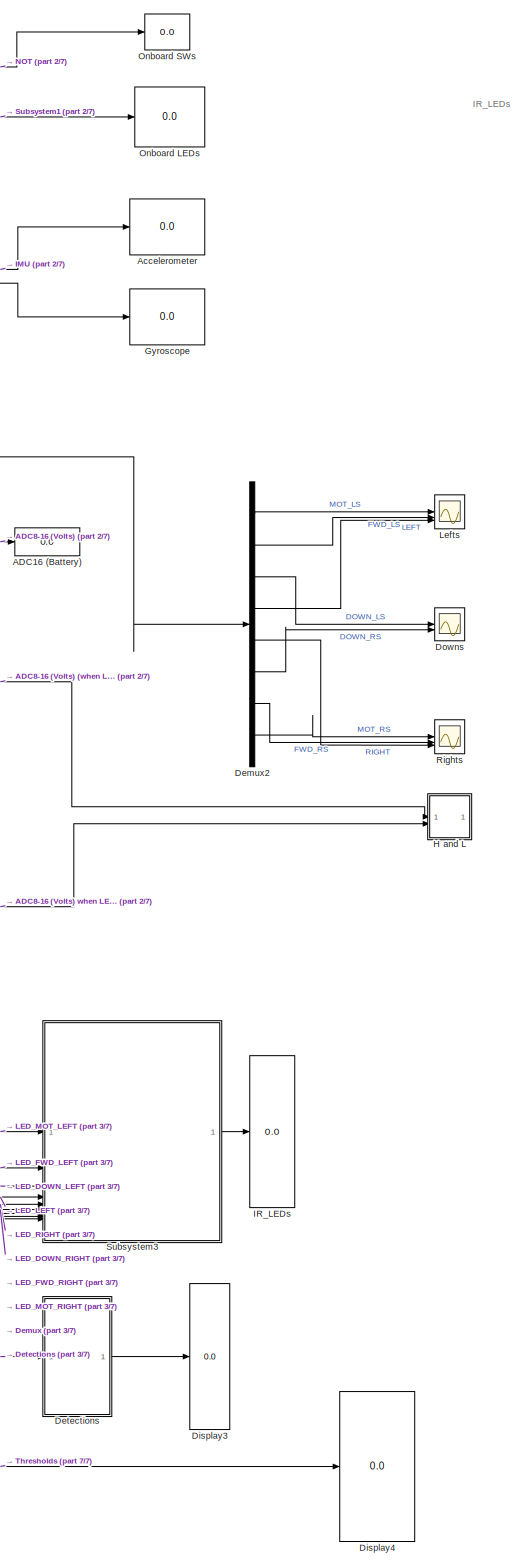
[diagram: root canvas - part 1/7, center side, full height]
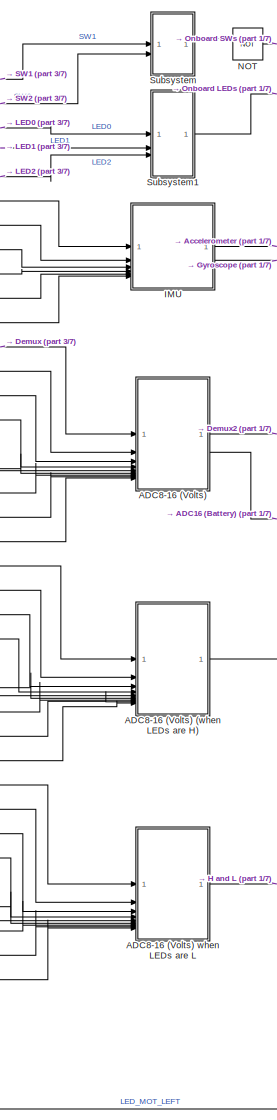
[diagram: root canvas - part 2/7, central region]
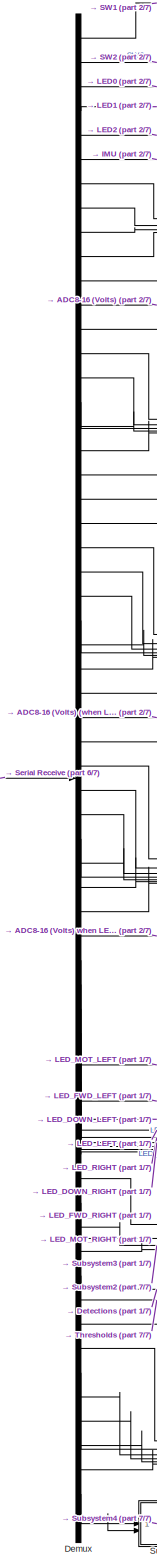
[diagram: root canvas - part 3/7, left side, full height]
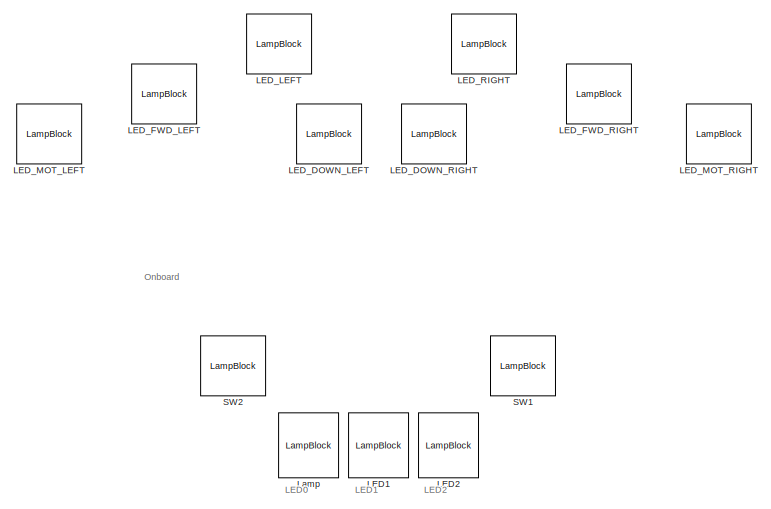
[diagram: root canvas - part 4/7, top right region]
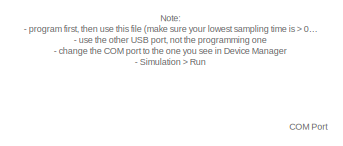
[diagram: root canvas - part 5/7, middle left region]
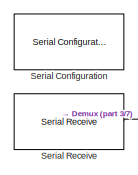
[diagram: root canvas - part 6/7, middle left region]
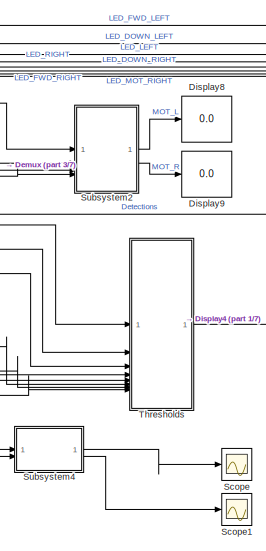
[diagram: root canvas - part 7/7, bottom center region]
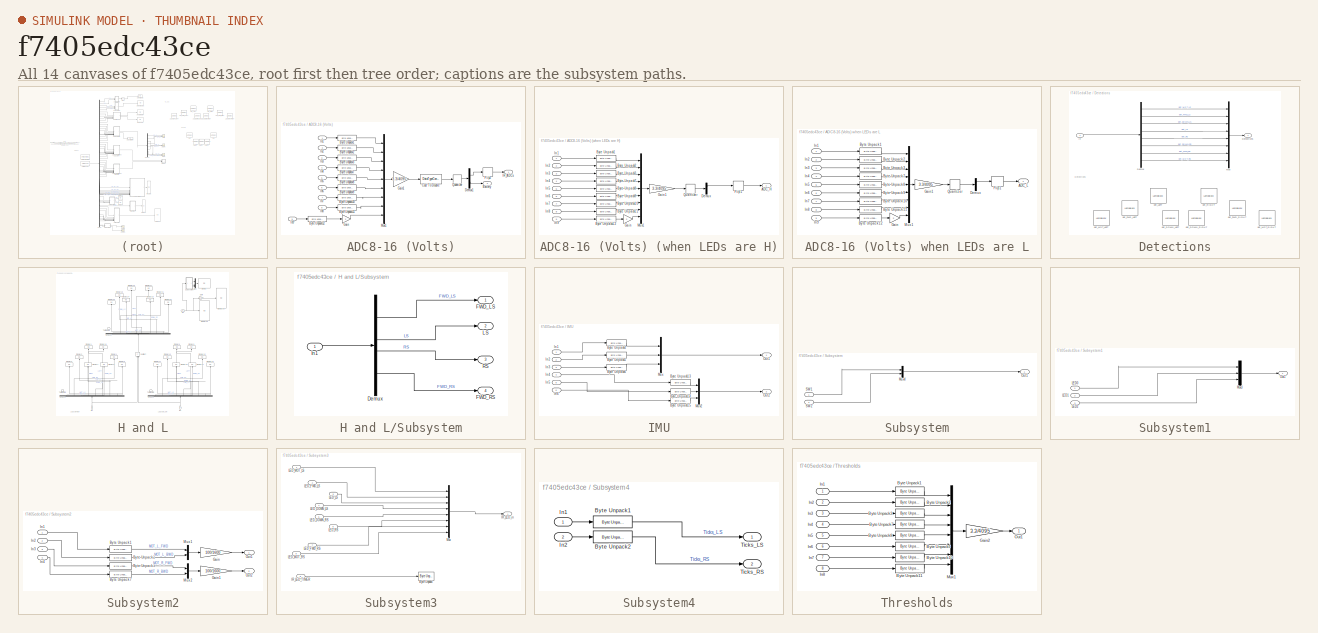
[diagram: thumbnail index - all 14 canvases of the model, root first then tree order]
MODEL slx_f7405edc43ce
KIND model
CONFIG AbsTol = auto
CONFIG EnableMultiTasking = off
CONFIG FixedStep = 0.001
CONFIG MaxStep = auto
CONFIG MinStep = auto
CONFIG RelTol = 1e-3
CONFIG SampleTimeConstraint = Unconstrained
CONFIG SolverName = VariableStepAuto
CONFIG StartTime = 0.0
CONFIG StopTime = inf
WORKSPACE source: mxarray member
WORKSPACE comPort: string (value not decoded)
WORKSPACE numBytes: Simulink.Parameter (value not decoded)
BLOCK [Display] ADC16 (Battery)
  Decimation = 1
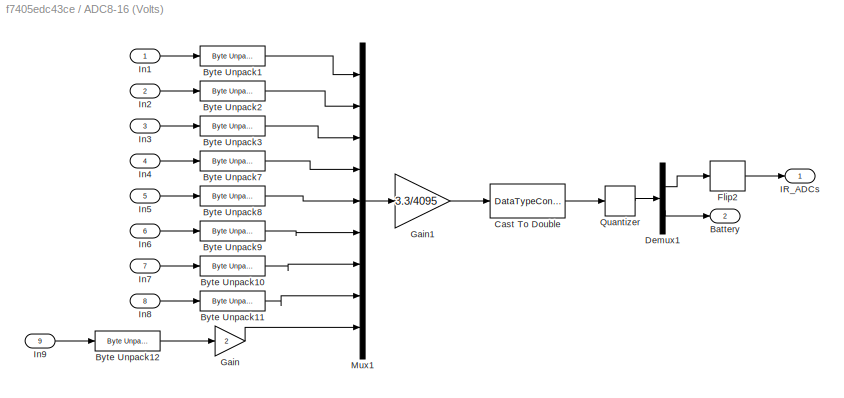
BLOCK [SubSystem] ADC8-16 (Volts)
BLOCK [SubSystem] ADC8-16 (Volts) (when LEDs are H)
BLOCK [Outport] ADC8-16 (Volts) (when LEDs are H)/ADC_H
  OutDataTypeStr = single
  PortDimensions = 8
  SignalType = real
  VarSizeSig = No
BLOCK [Reference] ADC8-16 (Volts) (when LEDs are H)/Byte Unpack1  REF=etargetslib/Byte Unpack
  SourceBlock = etargetslib/Byte Unpack
  SourceType = Byte Unpack
BLOCK [Reference] ADC8-16 (Volts) (when LEDs are H)/Byte Unpack10  REF=etargetslib/Byte Unpack
  SourceBlock = etargetslib/Byte Unpack
  SourceType = Byte Unpack
BLOCK [Reference] ADC8-16 (Volts) (when LEDs are H)/Byte Unpack11  REF=etargetslib/Byte Unpack
  SourceBlock = etargetslib/Byte Unpack
  SourceType = Byte Unpack
BLOCK [Reference] ADC8-16 (Volts) (when LEDs are H)/Byte Unpack12  REF=etargetslib/Byte Unpack
  SourceBlock = etargetslib/Byte Unpack
  SourceType = Byte Unpack
BLOCK [Reference] ADC8-16 (Volts) (when LEDs are H)/Byte Unpack2  REF=etargetslib/Byte Unpack
  SourceBlock = etargetslib/Byte Unpack
  SourceType = Byte Unpack
BLOCK [Reference] ADC8-16 (Volts) (when LEDs are H)/Byte Unpack3  REF=etargetslib/Byte Unpack
  SourceBlock = etargetslib/Byte Unpack
  SourceType = Byte Unpack
BLOCK [Reference] ADC8-16 (Volts) (when LEDs are H)/Byte Unpack7  REF=etargetslib/Byte Unpack
  SourceBlock = etargetslib/Byte Unpack
  SourceType = Byte Unpack
BLOCK [Reference] ADC8-16 (Volts) (when LEDs are H)/Byte Unpack8  REF=etargetslib/Byte Unpack
  SourceBlock = etargetslib/Byte Unpack
  SourceType = Byte Unpack
BLOCK [Reference] ADC8-16 (Volts) (when LEDs are H)/Byte Unpack9  REF=etargetslib/Byte Unpack
  SourceBlock = etargetslib/Byte Unpack
  SourceType = Byte Unpack
BLOCK [Demux] ADC8-16 (Volts) (when LEDs are H)/Demux
  Outputs = [8 1]
BLOCK [DSPFlip] ADC8-16 (Volts) (when LEDs are H)/Flip1
BLOCK [Gain] ADC8-16 (Volts) (when LEDs are H)/Gain
  Gain = 2
  OutDataTypeStr = uint16
BLOCK [Gain] ADC8-16 (Volts) (when LEDs are H)/Gain1
  Gain = 3.3/4095
  OutDataTypeStr = single
BLOCK [Inport] ADC8-16 (Volts) (when LEDs are H)/In1
BLOCK [Inport] ADC8-16 (Volts) (when LEDs are H)/In2
  Port = 2
BLOCK [Inport] ADC8-16 (Volts) (when LEDs are H)/In3
  Port = 3
BLOCK [Inport] ADC8-16 (Volts) (when LEDs are H)/In4
  Port = 4
BLOCK [Inport] ADC8-16 (Volts) (when LEDs are H)/In5
  Port = 5
BLOCK [Inport] ADC8-16 (Volts) (when LEDs are H)/In6
  Port = 6
BLOCK [Inport] ADC8-16 (Volts) (when LEDs are H)/In7
  Port = 7
BLOCK [Inport] ADC8-16 (Volts) (when LEDs are H)/In8
  Port = 8
BLOCK [Inport] ADC8-16 (Volts) (when LEDs are H)/In9
  Port = 9
BLOCK [Mux] ADC8-16 (Volts) (when LEDs are H)/Mux1
  DisplayOption = bar
  Inputs = 9
BLOCK [Quantizer] ADC8-16 (Volts) (when LEDs are H)/Quantizer
  QuantizationInterval = 0.01
BLOCK [SubSystem] ADC8-16 (Volts) when LEDs are L
BLOCK [Outport] ADC8-16 (Volts) when LEDs are L/ADC_L
  OutDataTypeStr = single
  PortDimensions = 8
  SignalType = real
  VarSizeSig = No
BLOCK [Reference] ADC8-16 (Volts) when LEDs are L/Byte Unpack1  REF=etargetslib/Byte Unpack
  SourceBlock = etargetslib/Byte Unpack
  SourceType = Byte Unpack
BLOCK [Reference] ADC8-16 (Volts) when LEDs are L/Byte Unpack10  REF=etargetslib/Byte Unpack
  SourceBlock = etargetslib/Byte Unpack
  SourceType = Byte Unpack
BLOCK [Reference] ADC8-16 (Volts) when LEDs are L/Byte Unpack11  REF=etargetslib/Byte Unpack
  SourceBlock = etargetslib/Byte Unpack
  SourceType = Byte Unpack
BLOCK [Reference] ADC8-16 (Volts) when LEDs are L/Byte Unpack12  REF=etargetslib/Byte Unpack
  SourceBlock = etargetslib/Byte Unpack
  SourceType = Byte Unpack
BLOCK [Reference] ADC8-16 (Volts) when LEDs are L/Byte Unpack2  REF=etargetslib/Byte Unpack
  SourceBlock = etargetslib/Byte Unpack
  SourceType = Byte Unpack
BLOCK [Reference] ADC8-16 (Volts) when LEDs are L/Byte Unpack3  REF=etargetslib/Byte Unpack
  SourceBlock = etargetslib/Byte Unpack
  SourceType = Byte Unpack
BLOCK [Reference] ADC8-16 (Volts) when LEDs are L/Byte Unpack7  REF=etargetslib/Byte Unpack
  SourceBlock = etargetslib/Byte Unpack
  SourceType = Byte Unpack
BLOCK [Reference] ADC8-16 (Volts) when LEDs are L/Byte Unpack8  REF=etargetslib/Byte Unpack
  SourceBlock = etargetslib/Byte Unpack
  SourceType = Byte Unpack
BLOCK [Reference] ADC8-16 (Volts) when LEDs are L/Byte Unpack9  REF=etargetslib/Byte Unpack
  SourceBlock = etargetslib/Byte Unpack
  SourceType = Byte Unpack
BLOCK [Demux] ADC8-16 (Volts) when LEDs are L/Demux
  Outputs = [8 1]
BLOCK [DSPFlip] ADC8-16 (Volts) when LEDs are L/Flip1
BLOCK [Gain] ADC8-16 (Volts) when LEDs are L/Gain
  Gain = 2
  OutDataTypeStr = uint16
BLOCK [Gain] ADC8-16 (Volts) when LEDs are L/Gain1
  Gain = 3.3/4095
  OutDataTypeStr = single
BLOCK [Inport] ADC8-16 (Volts) when LEDs are L/In1
BLOCK [Inport] ADC8-16 (Volts) when LEDs are L/In2
  Port = 2
BLOCK [Inport] ADC8-16 (Volts) when LEDs are L/In3
  Port = 3
BLOCK [Inport] ADC8-16 (Volts) when LEDs are L/In4
  Port = 4
BLOCK [Inport] ADC8-16 (Volts) when LEDs are L/In5
  Port = 5
BLOCK [Inport] ADC8-16 (Volts) when LEDs are L/In6
  Port = 6
BLOCK [Inport] ADC8-16 (Volts) when LEDs are L/In7
  Port = 7
BLOCK [Inport] ADC8-16 (Volts) when LEDs are L/In8
  Port = 8
BLOCK [Inport] ADC8-16 (Volts) when LEDs are L/In9
  Port = 9
BLOCK [Mux] ADC8-16 (Volts) when LEDs are L/Mux1
  DisplayOption = bar
  Inputs = 9
BLOCK [Quantizer] ADC8-16 (Volts) when LEDs are L/Quantizer
  QuantizationInterval = 0.01
BLOCK [Outport] ADC8-16 (Volts)/Battery
  Port = 2
BLOCK [Reference] ADC8-16 (Volts)/Byte Unpack1  REF=etargetslib/Byte Unpack
  SourceBlock = etargetslib/Byte Unpack
  SourceType = Byte Unpack
BLOCK [Reference] ADC8-16 (Volts)/Byte Unpack10  REF=etargetslib/Byte Unpack
  SourceBlock = etargetslib/Byte Unpack
  SourceType = Byte Unpack
BLOCK [Reference] ADC8-16 (Volts)/Byte Unpack11  REF=etargetslib/Byte Unpack
  SourceBlock = etargetslib/Byte Unpack
  SourceType = Byte Unpack
BLOCK [Reference] ADC8-16 (Volts)/Byte Unpack12  REF=etargetslib/Byte Unpack
  SourceBlock = etargetslib/Byte Unpack
  SourceType = Byte Unpack
BLOCK [Reference] ADC8-16 (Volts)/Byte Unpack2  REF=etargetslib/Byte Unpack
  SourceBlock = etargetslib/Byte Unpack
  SourceType = Byte Unpack
BLOCK [Reference] ADC8-16 (Volts)/Byte Unpack3  REF=etargetslib/Byte Unpack
  SourceBlock = etargetslib/Byte Unpack
  SourceType = Byte Unpack
BLOCK [Reference] ADC8-16 (Volts)/Byte Unpack7  REF=etargetslib/Byte Unpack
  SourceBlock = etargetslib/Byte Unpack
  SourceType = Byte Unpack
BLOCK [Reference] ADC8-16 (Volts)/Byte Unpack8  REF=etargetslib/Byte Unpack
  SourceBlock = etargetslib/Byte Unpack
  SourceType = Byte Unpack
BLOCK [Reference] ADC8-16 (Volts)/Byte Unpack9  REF=etargetslib/Byte Unpack
  SourceBlock = etargetslib/Byte Unpack
  SourceType = Byte Unpack
BLOCK [DataTypeConversion] ADC8-16 (Volts)/Cast To Double
  OutDataTypeStr = double
  RndMeth = Floor
  SaturateOnIntegerOverflow = off
BLOCK [Demux] ADC8-16 (Volts)/Demux1
  Outputs = [8 1]
BLOCK [DSPFlip] ADC8-16 (Volts)/Flip2
BLOCK [Gain] ADC8-16 (Volts)/Gain
  Gain = 2
  OutDataTypeStr = uint16
BLOCK [Gain] ADC8-16 (Volts)/Gain1
  Gain = 3.3/4095
BLOCK [Outport] ADC8-16 (Volts)/IR_ADCs
BLOCK [Inport] ADC8-16 (Volts)/In1
BLOCK [Inport] ADC8-16 (Volts)/In2
  Port = 2
BLOCK [Inport] ADC8-16 (Volts)/In3
  Port = 3
BLOCK [Inport] ADC8-16 (Volts)/In4
  Port = 4
BLOCK [Inport] ADC8-16 (Volts)/In5
  Port = 5
BLOCK [Inport] ADC8-16 (Volts)/In6
  Port = 6
BLOCK [Inport] ADC8-16 (Volts)/In7
  Port = 7
BLOCK [Inport] ADC8-16 (Volts)/In8
  Port = 8
BLOCK [Inport] ADC8-16 (Volts)/In9
  Port = 9
BLOCK [Mux] ADC8-16 (Volts)/Mux1
  DisplayOption = bar
  Inputs = 9
BLOCK [Quantizer] ADC8-16 (Volts)/Quantizer
  QuantizationInterval = 0.01
BLOCK [Display] Accelerometer
  Decimation = 1
BLOCK [Demux] Demux
  Outputs = [1 1 1 1 1 4 4 4 4 4 4 2 2 2 2 2 2 2 2 2 2 2 2 2 2 2 2 2 2 2 2 2 2 2 2 2 2 2 1 1 1 1 1 1 1 1 4 2 2 2 2 8 2 2 2 2 2 2 2 2 4 4]
BLOCK [Demux] Demux2
  Outputs = 8
BLOCK [SubSystem] Detections
BLOCK [Demux] Detections/Demux
  Outputs = 8
BLOCK [Outport] Detections/Detections
BLOCK [Inport] Detections/In
BLOCK [Mux] Detections/Mux
  DisplayOption = bar
  Inputs = 8
BLOCK [LampBlock] Detections/det_DOWN_LEFT
  LabelPosition = Hide
BLOCK [LampBlock] Detections/det_DOWN_RIGHT
  LabelPosition = Hide
BLOCK [LampBlock] Detections/det_FWD_LEFT
  LabelPosition = Hide
BLOCK [LampBlock] Detections/det_FWD_RIGHT
  LabelPosition = Hide
BLOCK [LampBlock] Detections/det_LEFT
  LabelPosition = Hide
BLOCK [LampBlock] Detections/det_MOT_LEFT
  LabelPosition = Hide
BLOCK [LampBlock] Detections/det_MOT_RIGHT
  LabelPosition = Hide
BLOCK [LampBlock] Detections/det_RIGHT
  LabelPosition = Hide
BLOCK [Display] Display3
  Decimation = 1
BLOCK [Display] Display4
  Decimation = 1
BLOCK [Display] Display8
  Decimation = 1
BLOCK [Display] Display9
  Decimation = 1
BLOCK [Scope] Downs
  Floating = off
  NumInputPorts = 2
  ScopeSpecificationString = Simulink.scopes.TimeScopeBlockCfg('CurrentConfiguration', extmgr.ConfigurationSet(extmgr.Configuration('Core','General UI',true),extmgr.Configuration('Core','Source UI',true),extmgr.Configuration('Sources','WiredSimulink',true,'DataLoggingVariableName','ScopeData2'),extmgr.Configuration('Visuals','Time Domain',true,'SerializedDisplays',{struct('MinYLimReal','0.05','MaxYLimReal','0.07','YLabelReal'...<+2094ch>
BLOCK [Display] Gyroscope
  Decimation = 1
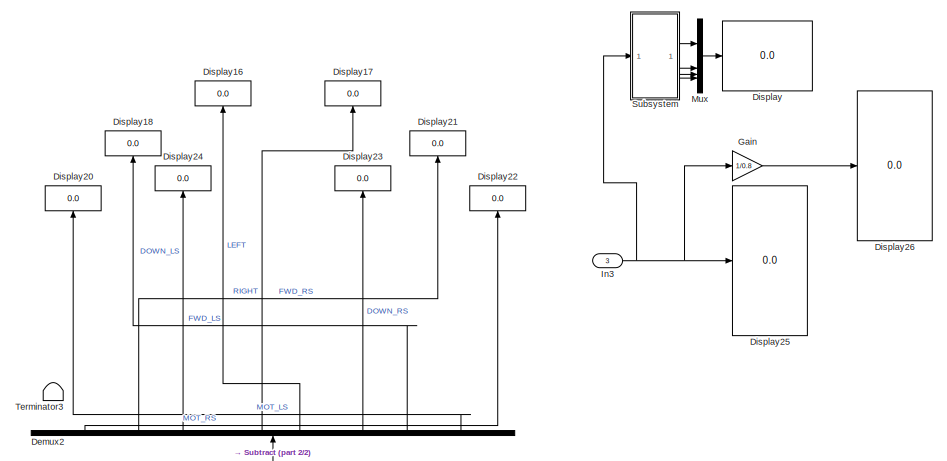
[diagram: H and L - part 1/2, full width, top band]
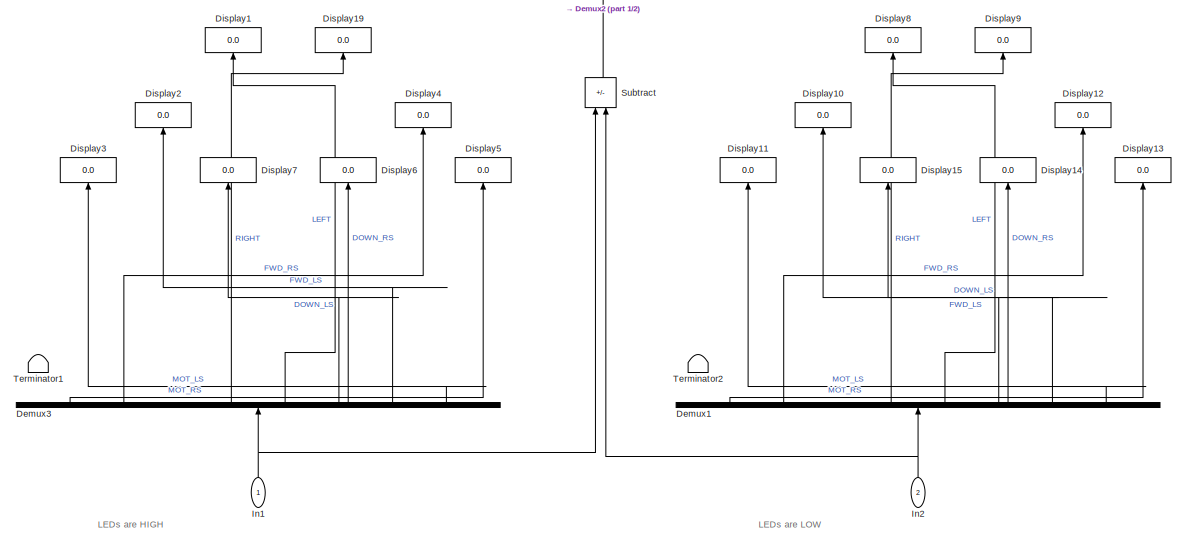
[diagram: H and L - part 2/2, full width, bottom band]
BLOCK [SubSystem] H and L
  PortSchema = {"entries":[{"content":{"sides":[{"content":{"connectorIds":["In1","In2"]},"type":"ConnectorPlacement.EquallySpacedRectSide","uuid":"23d90d47-3dd1-43a3-8642-4eeff2833ca2"},{"content":{"side":"RIGHT"},"type":"ConnectorPlacement.EquallySpacedRectSide","uuid":"72df7799-ca48-4914-91a2-cf4219a75fb9"},{"content":{"side":"TOP"},"type":"ConnectorPlacement.EquallySpacedRectSide","uuid":"e5433b1e-26b9-4d31-...<+353ch>
BLOCK [Demux] H and L/Demux1
  NameLocation = right
  Outputs = 8
BLOCK [Demux] H and L/Demux2
  NameLocation = right
  Outputs = 8
BLOCK [Demux] H and L/Demux3
  NameLocation = right
  Outputs = 8
BLOCK [Display] H and L/Display
  Decimation = 1
BLOCK [Display] H and L/Display1
  Decimation = 2
  NameLocation = right
BLOCK [Display] H and L/Display10
  Decimation = 2
  NameLocation = right
BLOCK [Display] H and L/Display11
  Decimation = 2
  NameLocation = right
BLOCK [Display] H and L/Display12
  Decimation = 2
  NameLocation = right
BLOCK [Display] H and L/Display13
  Decimation = 2
  NameLocation = right
BLOCK [Display] H and L/Display14
  Decimation = 2
  NameLocation = right
BLOCK [Display] H and L/Display15
  Decimation = 2
  NameLocation = right
BLOCK [Display] H and L/Display16
  Decimation = 2
  NameLocation = right
BLOCK [Display] H and L/Display17
  Decimation = 2
  NameLocation = right
BLOCK [Display] H and L/Display18
  Decimation = 2
  NameLocation = right
BLOCK [Display] H and L/Display19
  Decimation = 2
  NameLocation = right
BLOCK [Display] H and L/Display2
  Decimation = 2
  NameLocation = right
BLOCK [Display] H and L/Display20
  Decimation = 2
  NameLocation = right
BLOCK [Display] H and L/Display21
  Decimation = 2
  NameLocation = right
BLOCK [Display] H and L/Display22
  Decimation = 2
  NameLocation = right
BLOCK [Display] H and L/Display23
  Decimation = 2
  NameLocation = right
BLOCK [Display] H and L/Display24
  Decimation = 2
  NameLocation = right
BLOCK [Display] H and L/Display25
  Decimation = 1
BLOCK [Display] H and L/Display26
  Decimation = 1
BLOCK [Display] H and L/Display3
  Decimation = 2
  NameLocation = right
BLOCK [Display] H and L/Display4
  Decimation = 2
  NameLocation = right
BLOCK [Display] H and L/Display5
  Decimation = 2
  NameLocation = right
BLOCK [Display] H and L/Display6
  Decimation = 2
  NameLocation = right
BLOCK [Display] H and L/Display7
  Decimation = 2
  NameLocation = right
BLOCK [Display] H and L/Display8
  Decimation = 2
  NameLocation = right
BLOCK [Display] H and L/Display9
  Decimation = 2
  NameLocation = right
BLOCK [Gain] H and L/Gain
  Gain = 1/0.8
BLOCK [Inport] H and L/In1
  NameLocation = right
BLOCK [Inport] H and L/In2
  NameLocation = right
  Port = 2
BLOCK [Inport] H and L/In3
  Port = 3
BLOCK [Mux] H and L/Mux
  DisplayOption = bar
BLOCK [SubSystem] H and L/Subsystem
BLOCK [Demux] H and L/Subsystem/Demux
  Outputs = 8
BLOCK [Outport] H and L/Subsystem/FWD_LS
BLOCK [Outport] H and L/Subsystem/FWD_RS
  Port = 4
BLOCK [Inport] H and L/Subsystem/In1
BLOCK [Outport] H and L/Subsystem/LS
  Port = 2
BLOCK [Outport] H and L/Subsystem/RS
  Port = 3
BLOCK [Sum] H and L/Subtract
  AccumDataTypeStr = double
  IconShape = rectangular
  Inputs = +-
  NameLocation = right
  OutDataTypeStr = Inherit: Same as accumulator
  RndMeth = Nearest
  SaturateOnIntegerOverflow = on
BLOCK [Terminator] H and L/Terminator1
  NameLocation = right
BLOCK [Terminator] H and L/Terminator2
  NameLocation = right
BLOCK [Terminator] H and L/Terminator3
  NameLocation = right
BLOCK [SubSystem] IMU
BLOCK [Reference] IMU/Byte Unpack13  REF=etargetslib/Byte Unpack
  SourceBlock = etargetslib/Byte Unpack
  SourceType = Byte Unpack
BLOCK [Reference] IMU/Byte Unpack14  REF=etargetslib/Byte Unpack
  SourceBlock = etargetslib/Byte Unpack
  SourceType = Byte Unpack
BLOCK [Reference] IMU/Byte Unpack15  REF=etargetslib/Byte Unpack
  SourceBlock = etargetslib/Byte Unpack
  SourceType = Byte Unpack
BLOCK [Reference] IMU/Byte Unpack4  REF=etargetslib/Byte Unpack
  SourceBlock = etargetslib/Byte Unpack
  SourceType = Byte Unpack
BLOCK [Reference] IMU/Byte Unpack5  REF=etargetslib/Byte Unpack
  SourceBlock = etargetslib/Byte Unpack
  SourceType = Byte Unpack
BLOCK [Reference] IMU/Byte Unpack6  REF=etargetslib/Byte Unpack
  SourceBlock = etargetslib/Byte Unpack
  SourceType = Byte Unpack
BLOCK [Inport] IMU/In1
BLOCK [Inport] IMU/In2
  Port = 2
BLOCK [Inport] IMU/In3
  Port = 3
BLOCK [Inport] IMU/In4
  Port = 4
BLOCK [Inport] IMU/In5
  Port = 5
BLOCK [Inport] IMU/In6
  Port = 6
BLOCK [Mux] IMU/Mux
  DisplayOption = bar
  Inputs = 3
BLOCK [Mux] IMU/Mux2
  DisplayOption = bar
  Inputs = 3
BLOCK [Outport] IMU/Out1
BLOCK [Outport] IMU/Out2
  Port = 2
BLOCK [Display] IR_LEDs
  Decimation = 1
BLOCK [LampBlock] LED1
  Icon = Rectangle
  LabelPosition = Hide
  NameLocation = right
BLOCK [LampBlock] LED2
  Icon = Rectangle
  LabelPosition = Hide
  NameLocation = right
BLOCK [LampBlock] LED_DOWN_LEFT
  LabelPosition = Hide
BLOCK [LampBlock] LED_DOWN_RIGHT
  LabelPosition = Hide
BLOCK [LampBlock] LED_FWD_LEFT
  LabelPosition = Hide
BLOCK [LampBlock] LED_FWD_RIGHT
  LabelPosition = Hide
BLOCK [LampBlock] LED_LEFT
  LabelPosition = Hide
BLOCK [LampBlock] LED_MOT_LEFT
  LabelPosition = Hide
BLOCK [LampBlock] LED_MOT_RIGHT
  LabelPosition = Hide
BLOCK [LampBlock] LED_RIGHT
  LabelPosition = Hide
BLOCK [LampBlock] Lamp
  Icon = Rectangle
  LabelPosition = Hide
  NameLocation = right
BLOCK [Scope] Lefts
  Floating = off
  NumInputPorts = 3
  ScopeSpecificationString = Simulink.scopes.TimeScopeBlockCfg('CurrentConfiguration', extmgr.ConfigurationSet(extmgr.Configuration('Core','General UI',true),extmgr.Configuration('Core','Source UI',true),extmgr.Configuration('Sources','WiredSimulink',true),extmgr.Configuration('Visuals','Time Domain',true,'SerializedDisplays',{struct('MinYLimReal','0.04','MaxYLimReal','0.34','YLabelReal','','MinYLimMag','0.04','MaxYLimMag','0...<+2971ch>
BLOCK [Logic] NOT
  AllPortsSameDT = off
  IconShape = distinctive
  Operator = NOT
  OutDataTypeStr = boolean
BLOCK [Display] Onboard LEDs
  Decimation = 1
BLOCK [Display] Onboard SWs
  Decimation = 1
BLOCK [Scope] Rights
  Floating = off
  NumInputPorts = 3
  ScopeSpecificationString = Simulink.scopes.TimeScopeBlockCfg('CurrentConfiguration', extmgr.ConfigurationSet(extmgr.Configuration('Core','General UI',true),extmgr.Configuration('Core','Source UI',true),extmgr.Configuration('Sources','WiredSimulink',true,'DataLoggingVariableName','ScopeData1'),extmgr.Configuration('Visuals','Time Domain',true,'SerializedDisplays',{struct('MinYLimReal','0.15125','MaxYLimReal','1.13875','YLabe...<+2791ch>
BLOCK [LampBlock] SW1
  LabelPosition = Hide
  NameLocation = top
BLOCK [LampBlock] SW2
  LabelPosition = Hide
  NameLocation = top
BLOCK [Scope] Scope
  Floating = off
  NumInputPorts = 1
  ScopeSpecificationString = Simulink.scopes.TimeScopeBlockCfg('CurrentConfiguration', extmgr.ConfigurationSet(extmgr.Configuration('Core','General UI',true),extmgr.Configuration('Core','Source UI',true),extmgr.Configuration('Sources','WiredSimulink',true,'DataLoggingVariableName','ScopeData1'),extmgr.Configuration('Visuals','Time Domain',true,'SerializedDisplays',{struct('MinYLimReal','-1.00000','MaxYLimReal','1.00000','YLab...<+1432ch>
BLOCK [Scope] Scope1
  Floating = off
  NumInputPorts = 1
  ScopeSpecificationString = Simulink.scopes.TimeScopeBlockCfg('CurrentConfiguration', extmgr.ConfigurationSet(extmgr.Configuration('Core','General UI',true),extmgr.Configuration('Core','Source UI',true),extmgr.Configuration('Sources','WiredSimulink',true,'DataLoggingVariableName','ScopeData2'),extmgr.Configuration('Visuals','Time Domain',true),extmgr.Configuration('Tools','Plot Navigation',true),extmgr.Configuration('Tools',...<+40ch>
BLOCK [Reference] Serial Configuration  REF=instrumentseriallib/Serial Configuration
  LibrarySourceBlock = embeddedtargetslib/Host Communication/Serial Configuration
  Priority = -200000
  SourceBlock = instrumentseriallib/Serial Configuration
  SourceType = system.SerialConfiguration
BLOCK [Reference] Serial Receive  REF=instrumentseriallib/Serial Receive
  LibrarySourceBlock = embeddedtargetslib/Host Communication/Serial Receive
  Priority = 1
  SourceBlock = instrumentseriallib/Serial Receive
  SourceType = system.SerialReceive
BLOCK [SubSystem] Subsystem
BLOCK [Mux] Subsystem/Mux4
  DisplayOption = bar
  Inputs = 2
BLOCK [Outport] Subsystem/Out1
BLOCK [Inport] Subsystem/SW1
BLOCK [Inport] Subsystem/SW2
  Port = 2
BLOCK [SubSystem] Subsystem1
BLOCK [Inport] Subsystem1/LED0
BLOCK [Inport] Subsystem1/LED1
  Port = 2
BLOCK [Inport] Subsystem1/LED2
  Port = 3
BLOCK [Mux] Subsystem1/Mux3
  DisplayOption = bar
  Inputs = 3
BLOCK [Outport] Subsystem1/Out1
BLOCK [SubSystem] Subsystem2
BLOCK [Reference] Subsystem2/Byte Unpack1  REF=etargetslib/Byte Unpack
  SourceBlock = etargetslib/Byte Unpack
  SourceType = Byte Unpack
BLOCK [Reference] Subsystem2/Byte Unpack2  REF=etargetslib/Byte Unpack
  SourceBlock = etargetslib/Byte Unpack
  SourceType = Byte Unpack
BLOCK [Reference] Subsystem2/Byte Unpack3  REF=etargetslib/Byte Unpack
  SourceBlock = etargetslib/Byte Unpack
  SourceType = Byte Unpack
BLOCK [Reference] Subsystem2/Byte Unpack7  REF=etargetslib/Byte Unpack
  SourceBlock = etargetslib/Byte Unpack
  SourceType = Byte Unpack
BLOCK [Gain] Subsystem2/Gain
  Gain = 100/1600
BLOCK [Gain] Subsystem2/Gain1
  Gain = 100/1600
BLOCK [Inport] Subsystem2/In1
BLOCK [Inport] Subsystem2/In2
  Port = 2
BLOCK [Inport] Subsystem2/In3
  Port = 3
BLOCK [Inport] Subsystem2/In4
  Port = 4
BLOCK [Mux] Subsystem2/Mux1
  DisplayOption = bar
  Inputs = 2
BLOCK [Mux] Subsystem2/Mux2
  DisplayOption = bar
  Inputs = 2
BLOCK [Outport] Subsystem2/Out1
BLOCK [Outport] Subsystem2/Out2
  Port = 2
BLOCK [SubSystem] Subsystem3
BLOCK [Reference] Subsystem3/Byte Unpack  REF=stmutilitieslib/Byte Unpack
  SourceBlock = stmutilitieslib/Byte Unpack
  SourceType = Byte Unpack
BLOCK [Inport] Subsystem3/IR_LED_TIMER
  Port = 9
BLOCK [Outport] Subsystem3/IR_LED_in
BLOCK [Inport] Subsystem3/LED_DOWN_LS
  Port = 4
BLOCK [Inport] Subsystem3/LED_DOWN_RS
  Port = 5
BLOCK [Inport] Subsystem3/LED_FWD_LS
  Port = 2
BLOCK [Inport] Subsystem3/LED_FWD_RS
  Port = 7
BLOCK [Inport] Subsystem3/LED_LS
  Port = 3
BLOCK [Inport] Subsystem3/LED_MOT_LS
BLOCK [Inport] Subsystem3/LED_MOT_RS
  Port = 8
BLOCK [Inport] Subsystem3/LED_RS
  Port = 6
BLOCK [Mux] Subsystem3/Mux
  DisplayOption = bar
  Inputs = 8
BLOCK [SubSystem] Subsystem4
BLOCK [Reference] Subsystem4/Byte Unpack1  REF=etargetslib/Byte Unpack
  SourceBlock = etargetslib/Byte Unpack
  SourceType = Byte Unpack
BLOCK [Reference] Subsystem4/Byte Unpack2  REF=etargetslib/Byte Unpack
  SourceBlock = etargetslib/Byte Unpack
  SourceType = Byte Unpack
BLOCK [Inport] Subsystem4/In1
BLOCK [Inport] Subsystem4/In2
  Port = 2
BLOCK [Outport] Subsystem4/Ticks_LS
BLOCK [Outport] Subsystem4/Ticks_RS
  Port = 2
BLOCK [SubSystem] Thresholds
BLOCK [Reference] Thresholds/Byte Unpack1  REF=etargetslib/Byte Unpack
  SourceBlock = etargetslib/Byte Unpack
  SourceType = Byte Unpack
BLOCK [Reference] Thresholds/Byte Unpack10  REF=etargetslib/Byte Unpack
  SourceBlock = etargetslib/Byte Unpack
  SourceType = Byte Unpack
BLOCK [Reference] Thresholds/Byte Unpack11  REF=etargetslib/Byte Unpack
  SourceBlock = etargetslib/Byte Unpack
  SourceType = Byte Unpack
BLOCK [Reference] Thresholds/Byte Unpack2  REF=etargetslib/Byte Unpack
  SourceBlock = etargetslib/Byte Unpack
  SourceType = Byte Unpack
BLOCK [Reference] Thresholds/Byte Unpack3  REF=etargetslib/Byte Unpack
  SourceBlock = etargetslib/Byte Unpack
  SourceType = Byte Unpack
BLOCK [Reference] Thresholds/Byte Unpack7  REF=etargetslib/Byte Unpack
  SourceBlock = etargetslib/Byte Unpack
  SourceType = Byte Unpack
BLOCK [Reference] Thresholds/Byte Unpack8  REF=etargetslib/Byte Unpack
  SourceBlock = etargetslib/Byte Unpack
  SourceType = Byte Unpack
BLOCK [Reference] Thresholds/Byte Unpack9  REF=etargetslib/Byte Unpack
  SourceBlock = etargetslib/Byte Unpack
  SourceType = Byte Unpack
BLOCK [Gain] Thresholds/Gain2
  Gain = 3.3/4095
  OutDataTypeStr = single
BLOCK [Inport] Thresholds/In1
BLOCK [Inport] Thresholds/In2
  Port = 2
BLOCK [Inport] Thresholds/In3
  Port = 3
BLOCK [Inport] Thresholds/In4
  Port = 4
BLOCK [Inport] Thresholds/In5
  Port = 5
BLOCK [Inport] Thresholds/In6
  Port = 6
BLOCK [Inport] Thresholds/In7
  Port = 7
BLOCK [Inport] Thresholds/In8
  Port = 8
BLOCK [Mux] Thresholds/Mux1
  DisplayOption = bar
  Inputs = 8
BLOCK [Outport] Thresholds/Out1
ANNOTATION (root): LED0
ANNOTATION (root): LED1
ANNOTATION (root): LED2
ANNOTATION (root): COM Port
ANNOTATION (root): IR_LEDs
ANNOTATION (root): Note: - program first, then use this file (make sure your lowest sampling time is > 0.05) - use the other USB port, not the programming one - change the COM port to the one you see in Device Manager - Simulation > Run
ANNOTATION (root): Onboard
ANNOTATION Detections: Detections
ANNOTATION H and L: LEDs are HIGH
ANNOTATION H and L: LEDs are LOW
LINE ADC8-16 (Volts) (when LEDs are H)/Byte Unpack10:1 -> ADC8-16 (Volts) (when LEDs are H)/Mux1:7
LINE ADC8-16 (Volts) (when LEDs are H)/Byte Unpack11:1 -> ADC8-16 (Volts) (when LEDs are H)/Mux1:8
LINE ADC8-16 (Volts) (when LEDs are H)/Byte Unpack12:1 -> ADC8-16 (Volts) (when LEDs are H)/Gain:1
LINE ADC8-16 (Volts) (when LEDs are H)/Byte Unpack1:1 -> ADC8-16 (Volts) (when LEDs are H)/Mux1:1
LINE ADC8-16 (Volts) (when LEDs are H)/Byte Unpack2:1 -> ADC8-16 (Volts) (when LEDs are H)/Mux1:2
LINE ADC8-16 (Volts) (when LEDs are H)/Byte Unpack3:1 -> ADC8-16 (Volts) (when LEDs are H)/Mux1:3
LINE ADC8-16 (Volts) (when LEDs are H)/Byte Unpack7:1 -> ADC8-16 (Volts) (when LEDs are H)/Mux1:4
LINE ADC8-16 (Volts) (when LEDs are H)/Byte Unpack8:1 -> ADC8-16 (Volts) (when LEDs are H)/Mux1:5
LINE ADC8-16 (Volts) (when LEDs are H)/Byte Unpack9:1 -> ADC8-16 (Volts) (when LEDs are H)/Mux1:6
LINE ADC8-16 (Volts) (when LEDs are H)/Demux:1 -> ADC8-16 (Volts) (when LEDs are H)/Flip1:1
LINE ADC8-16 (Volts) (when LEDs are H)/Flip1:1 -> ADC8-16 (Volts) (when LEDs are H)/ADC_H:1
LINE ADC8-16 (Volts) (when LEDs are H)/Gain1:1 -> ADC8-16 (Volts) (when LEDs are H)/Quantizer:1
LINE ADC8-16 (Volts) (when LEDs are H)/Gain:1 -> ADC8-16 (Volts) (when LEDs are H)/Mux1:9
LINE ADC8-16 (Volts) (when LEDs are H)/In1:1 -> ADC8-16 (Volts) (when LEDs are H)/Byte Unpack1:1
LINE ADC8-16 (Volts) (when LEDs are H)/In2:1 -> ADC8-16 (Volts) (when LEDs are H)/Byte Unpack2:1
LINE ADC8-16 (Volts) (when LEDs are H)/In3:1 -> ADC8-16 (Volts) (when LEDs are H)/Byte Unpack3:1
LINE ADC8-16 (Volts) (when LEDs are H)/In4:1 -> ADC8-16 (Volts) (when LEDs are H)/Byte Unpack7:1
LINE ADC8-16 (Volts) (when LEDs are H)/In5:1 -> ADC8-16 (Volts) (when LEDs are H)/Byte Unpack8:1
LINE ADC8-16 (Volts) (when LEDs are H)/In6:1 -> ADC8-16 (Volts) (when LEDs are H)/Byte Unpack9:1
LINE ADC8-16 (Volts) (when LEDs are H)/In7:1 -> ADC8-16 (Volts) (when LEDs are H)/Byte Unpack10:1
LINE ADC8-16 (Volts) (when LEDs are H)/In8:1 -> ADC8-16 (Volts) (when LEDs are H)/Byte Unpack11:1
LINE ADC8-16 (Volts) (when LEDs are H)/In9:1 -> ADC8-16 (Volts) (when LEDs are H)/Byte Unpack12:1
LINE ADC8-16 (Volts) (when LEDs are H)/Mux1:1 -> ADC8-16 (Volts) (when LEDs are H)/Gain1:1
LINE ADC8-16 (Volts) (when LEDs are H)/Quantizer:1 -> ADC8-16 (Volts) (when LEDs are H)/Demux:1
LINE ADC8-16 (Volts) (when LEDs are H):1 -> H and L:1
LINE ADC8-16 (Volts) when LEDs are L/Byte Unpack10:1 -> ADC8-16 (Volts) when LEDs are L/Mux1:7
LINE ADC8-16 (Volts) when LEDs are L/Byte Unpack11:1 -> ADC8-16 (Volts) when LEDs are L/Mux1:8
LINE ADC8-16 (Volts) when LEDs are L/Byte Unpack12:1 -> ADC8-16 (Volts) when LEDs are L/Gain:1
LINE ADC8-16 (Volts) when LEDs are L/Byte Unpack1:1 -> ADC8-16 (Volts) when LEDs are L/Mux1:1
LINE ADC8-16 (Volts) when LEDs are L/Byte Unpack2:1 -> ADC8-16 (Volts) when LEDs are L/Mux1:2
LINE ADC8-16 (Volts) when LEDs are L/Byte Unpack3:1 -> ADC8-16 (Volts) when LEDs are L/Mux1:3
LINE ADC8-16 (Volts) when LEDs are L/Byte Unpack7:1 -> ADC8-16 (Volts) when LEDs are L/Mux1:4
LINE ADC8-16 (Volts) when LEDs are L/Byte Unpack8:1 -> ADC8-16 (Volts) when LEDs are L/Mux1:5
LINE ADC8-16 (Volts) when LEDs are L/Byte Unpack9:1 -> ADC8-16 (Volts) when LEDs are L/Mux1:6
LINE ADC8-16 (Volts) when LEDs are L/Demux:1 -> ADC8-16 (Volts) when LEDs are L/Flip1:1
LINE ADC8-16 (Volts) when LEDs are L/Flip1:1 -> ADC8-16 (Volts) when LEDs are L/ADC_L:1
LINE ADC8-16 (Volts) when LEDs are L/Gain1:1 -> ADC8-16 (Volts) when LEDs are L/Quantizer:1
LINE ADC8-16 (Volts) when LEDs are L/Gain:1 -> ADC8-16 (Volts) when LEDs are L/Mux1:9
LINE ADC8-16 (Volts) when LEDs are L/In1:1 -> ADC8-16 (Volts) when LEDs are L/Byte Unpack1:1
LINE ADC8-16 (Volts) when LEDs are L/In2:1 -> ADC8-16 (Volts) when LEDs are L/Byte Unpack2:1
LINE ADC8-16 (Volts) when LEDs are L/In3:1 -> ADC8-16 (Volts) when LEDs are L/Byte Unpack3:1
LINE ADC8-16 (Volts) when LEDs are L/In4:1 -> ADC8-16 (Volts) when LEDs are L/Byte Unpack7:1
LINE ADC8-16 (Volts) when LEDs are L/In5:1 -> ADC8-16 (Volts) when LEDs are L/Byte Unpack8:1
LINE ADC8-16 (Volts) when LEDs are L/In6:1 -> ADC8-16 (Volts) when LEDs are L/Byte Unpack9:1
LINE ADC8-16 (Volts) when LEDs are L/In7:1 -> ADC8-16 (Volts) when LEDs are L/Byte Unpack10:1
LINE ADC8-16 (Volts) when LEDs are L/In8:1 -> ADC8-16 (Volts) when LEDs are L/Byte Unpack11:1
LINE ADC8-16 (Volts) when LEDs are L/In9:1 -> ADC8-16 (Volts) when LEDs are L/Byte Unpack12:1
LINE ADC8-16 (Volts) when LEDs are L/Mux1:1 -> ADC8-16 (Volts) when LEDs are L/Gain1:1
LINE ADC8-16 (Volts) when LEDs are L/Quantizer:1 -> ADC8-16 (Volts) when LEDs are L/Demux:1
LINE ADC8-16 (Volts) when LEDs are L:1 -> H and L:2
LINE ADC8-16 (Volts)/Byte Unpack10:1 -> ADC8-16 (Volts)/Mux1:7
LINE ADC8-16 (Volts)/Byte Unpack11:1 -> ADC8-16 (Volts)/Mux1:8
LINE ADC8-16 (Volts)/Byte Unpack12:1 -> ADC8-16 (Volts)/Gain:1
LINE ADC8-16 (Volts)/Byte Unpack1:1 -> ADC8-16 (Volts)/Mux1:1
LINE ADC8-16 (Volts)/Byte Unpack2:1 -> ADC8-16 (Volts)/Mux1:2
LINE ADC8-16 (Volts)/Byte Unpack3:1 -> ADC8-16 (Volts)/Mux1:3
LINE ADC8-16 (Volts)/Byte Unpack7:1 -> ADC8-16 (Volts)/Mux1:4
LINE ADC8-16 (Volts)/Byte Unpack8:1 -> ADC8-16 (Volts)/Mux1:5
LINE ADC8-16 (Volts)/Byte Unpack9:1 -> ADC8-16 (Volts)/Mux1:6
LINE ADC8-16 (Volts)/Cast To Double:1 -> ADC8-16 (Volts)/Quantizer:1
LINE ADC8-16 (Volts)/Demux1:1 -> ADC8-16 (Volts)/Flip2:1
LINE ADC8-16 (Volts)/Demux1:2 -> ADC8-16 (Volts)/Battery:1
LINE ADC8-16 (Volts)/Flip2:1 -> ADC8-16 (Volts)/IR_ADCs:1
LINE ADC8-16 (Volts)/Gain1:1 -> ADC8-16 (Volts)/Cast To Double:1
LINE ADC8-16 (Volts)/Gain:1 -> ADC8-16 (Volts)/Mux1:9
LINE ADC8-16 (Volts)/In1:1 -> ADC8-16 (Volts)/Byte Unpack1:1
LINE ADC8-16 (Volts)/In2:1 -> ADC8-16 (Volts)/Byte Unpack2:1
LINE ADC8-16 (Volts)/In3:1 -> ADC8-16 (Volts)/Byte Unpack3:1
LINE ADC8-16 (Volts)/In4:1 -> ADC8-16 (Volts)/Byte Unpack7:1
LINE ADC8-16 (Volts)/In5:1 -> ADC8-16 (Volts)/Byte Unpack8:1
LINE ADC8-16 (Volts)/In6:1 -> ADC8-16 (Volts)/Byte Unpack9:1
LINE ADC8-16 (Volts)/In7:1 -> ADC8-16 (Volts)/Byte Unpack10:1
LINE ADC8-16 (Volts)/In8:1 -> ADC8-16 (Volts)/Byte Unpack11:1
LINE ADC8-16 (Volts)/In9:1 -> ADC8-16 (Volts)/Byte Unpack12:1
LINE ADC8-16 (Volts)/Mux1:1 -> ADC8-16 (Volts)/Gain1:1
LINE ADC8-16 (Volts)/Quantizer:1 -> ADC8-16 (Volts)/Demux1:1
LINE ADC8-16 (Volts):1 -> Demux2:1
LINE ADC8-16 (Volts):2 -> ADC16 (Battery):1
LINE Demux2:1 -> Lefts:1
LINE Demux2:2 -> Lefts:2
LINE Demux2:3 -> Downs:1
LINE Demux2:4 -> Lefts:3
LINE Demux2:5 -> Rights:3
LINE Demux2:6 -> Downs:2
LINE Demux2:7 -> Rights:2
LINE Demux2:8 -> Rights:1
LINE Demux:1 -> Subsystem:1
LINE Demux:10 -> IMU:5
LINE Demux:11 -> IMU:6
LINE Demux:12 -> ADC8-16 (Volts):1
LINE Demux:13 -> ADC8-16 (Volts):2
LINE Demux:14 -> ADC8-16 (Volts):3
LINE Demux:15 -> ADC8-16 (Volts):4
LINE Demux:16 -> ADC8-16 (Volts):5
LINE Demux:17 -> ADC8-16 (Volts):6
LINE Demux:18 -> ADC8-16 (Volts):7
LINE Demux:19 -> ADC8-16 (Volts):8
LINE Demux:2 -> Subsystem:2
LINE Demux:20 -> ADC8-16 (Volts):9
LINE Demux:21 -> ADC8-16 (Volts) (when LEDs are H):1
LINE Demux:22 -> ADC8-16 (Volts) (when LEDs are H):2
LINE Demux:23 -> ADC8-16 (Volts) (when LEDs are H):3
LINE Demux:24 -> ADC8-16 (Volts) (when LEDs are H):4
LINE Demux:25 -> ADC8-16 (Volts) (when LEDs are H):5
LINE Demux:26 -> ADC8-16 (Volts) (when LEDs are H):6
LINE Demux:27 -> ADC8-16 (Volts) (when LEDs are H):7
LINE Demux:28 -> ADC8-16 (Volts) (when LEDs are H):8
LINE Demux:29 -> ADC8-16 (Volts) (when LEDs are H):9
LINE Demux:3 -> Subsystem1:1
LINE Demux:30 -> ADC8-16 (Volts) when LEDs are L:1
LINE Demux:31 -> ADC8-16 (Volts) when LEDs are L:2
LINE Demux:32 -> ADC8-16 (Volts) when LEDs are L:3
LINE Demux:33 -> ADC8-16 (Volts) when LEDs are L:4
LINE Demux:34 -> ADC8-16 (Volts) when LEDs are L:5
LINE Demux:35 -> ADC8-16 (Volts) when LEDs are L:6
LINE Demux:36 -> ADC8-16 (Volts) when LEDs are L:7
LINE Demux:37 -> ADC8-16 (Volts) when LEDs are L:8
LINE Demux:38 -> ADC8-16 (Volts) when LEDs are L:9
LINE Demux:39 -> Subsystem3:1
LINE Demux:4 -> Subsystem1:2
LINE Demux:40 -> Subsystem3:2
LINE Demux:41 -> Subsystem3:3
LINE Demux:42 -> Subsystem3:4
LINE Demux:43 -> Subsystem3:5
LINE Demux:44 -> Subsystem3:6
LINE Demux:45 -> Subsystem3:7
LINE Demux:46 -> Subsystem3:8
LINE Demux:47 -> Subsystem3:9
LINE Demux:48 -> Subsystem2:1
LINE Demux:49 -> Subsystem2:2
LINE Demux:5 -> Subsystem1:3
LINE Demux:50 -> Subsystem2:3
LINE Demux:51 -> Subsystem2:4
LINE Demux:52 -> Detections:1
LINE Demux:53 -> Thresholds:1
LINE Demux:54 -> Thresholds:2
LINE Demux:55 -> Thresholds:3
LINE Demux:56 -> Thresholds:4
LINE Demux:57 -> Thresholds:5
LINE Demux:58 -> Thresholds:6
LINE Demux:59 -> Thresholds:7
LINE Demux:6 -> IMU:1
LINE Demux:60 -> Thresholds:8
LINE Demux:61 -> Subsystem4:1
LINE Demux:62 -> Subsystem4:2
LINE Demux:7 -> IMU:2
LINE Demux:8 -> IMU:3
LINE Demux:9 -> IMU:4
LINE Detections/Demux:1 -> Detections/Mux:1
LINE Detections/Demux:2 -> Detections/Mux:2
LINE Detections/Demux:3 -> Detections/Mux:3
LINE Detections/Demux:4 -> Detections/Mux:4
LINE Detections/Demux:5 -> Detections/Mux:5
LINE Detections/Demux:6 -> Detections/Mux:6
LINE Detections/Demux:7 -> Detections/Mux:7
LINE Detections/Demux:8 -> Detections/Mux:8
LINE Detections/In:1 -> Detections/Demux:1
LINE Detections/Mux:1 -> Detections/Detections:1
LINE Detections:1 -> Display3:1
LINE H and L/Demux1:1 -> H and L/Display13:1
LINE H and L/Demux1:2 -> H and L/Display12:1
LINE H and L/Demux1:3 -> H and L/Display14:1
LINE H and L/Demux1:4 -> H and L/Display9:1
LINE H and L/Demux1:5 -> H and L/Display8:1
LINE H and L/Demux1:6 -> H and L/Display15:1
LINE H and L/Demux1:7 -> H and L/Display10:1
LINE H and L/Demux1:8 -> H and L/Display11:1
LINE H and L/Demux2:1 -> H and L/Display22:1
LINE H and L/Demux2:2 -> H and L/Display21:1
LINE H and L/Demux2:3 -> H and L/Display23:1
LINE H and L/Demux2:4 -> H and L/Display17:1
LINE H and L/Demux2:5 -> H and L/Display16:1
LINE H and L/Demux2:6 -> H and L/Display24:1
LINE H and L/Demux2:7 -> H and L/Display18:1
LINE H and L/Demux2:8 -> H and L/Display20:1
LINE H and L/Demux3:1 -> H and L/Display5:1
LINE H and L/Demux3:2 -> H and L/Display4:1
LINE H and L/Demux3:3 -> H and L/Display6:1
LINE H and L/Demux3:4 -> H and L/Display19:1
LINE H and L/Demux3:5 -> H and L/Display1:1
LINE H and L/Demux3:6 -> H and L/Display7:1
LINE H and L/Demux3:7 -> H and L/Display2:1
LINE H and L/Demux3:8 -> H and L/Display3:1
LINE H and L/Gain:1 -> H and L/Display26:1
NET H and L/In1:1 -> H and L/Demux3:1, H and L/Subtract:1
NET H and L/In2:1 -> H and L/Demux1:1, H and L/Subtract:2
NET H and L/In3:1 -> H and L/Display25:1, H and L/Gain:1, H and L/Subsystem:1
LINE H and L/Mux:1 -> H and L/Display:1
LINE H and L/Subsystem/Demux:2 -> H and L/Subsystem/FWD_LS:1
LINE H and L/Subsystem/Demux:4 -> H and L/Subsystem/LS:1
LINE H and L/Subsystem/Demux:5 -> H and L/Subsystem/RS:1
LINE H and L/Subsystem/Demux:7 -> H and L/Subsystem/FWD_RS:1
LINE H and L/Subsystem/In1:1 -> H and L/Subsystem/Demux:1
LINE H and L/Subsystem:1 -> H and L/Mux:1
LINE H and L/Subsystem:2 -> H and L/Mux:2
LINE H and L/Subsystem:3 -> H and L/Mux:3
LINE H and L/Subsystem:4 -> H and L/Mux:4
LINE H and L/Subtract:1 -> H and L/Demux2:1
LINE IMU/Byte Unpack13:1 -> IMU/Mux2:1
LINE IMU/Byte Unpack14:1 -> IMU/Mux2:2
LINE IMU/Byte Unpack15:1 -> IMU/Mux2:3
LINE IMU/Byte Unpack4:1 -> IMU/Mux:1
LINE IMU/Byte Unpack5:1 -> IMU/Mux:2
LINE IMU/Byte Unpack6:1 -> IMU/Mux:3
LINE IMU/In1:1 -> IMU/Byte Unpack4:1
LINE IMU/In2:1 -> IMU/Byte Unpack5:1
LINE IMU/In3:1 -> IMU/Byte Unpack6:1
LINE IMU/In4:1 -> IMU/Byte Unpack13:1
LINE IMU/In5:1 -> IMU/Byte Unpack14:1
LINE IMU/In6:1 -> IMU/Byte Unpack15:1
LINE IMU/Mux2:1 -> IMU/Out2:1
LINE IMU/Mux:1 -> IMU/Out1:1
LINE IMU:1 -> Accelerometer:1
LINE IMU:2 -> Gyroscope:1
LINE NOT:1 -> Onboard SWs:1
LINE Serial Receive:1 -> Demux:1
LINE Subsystem/Mux4:1 -> Subsystem/Out1:1
LINE Subsystem/SW1:1 -> Subsystem/Mux4:1
LINE Subsystem/SW2:1 -> Subsystem/Mux4:2
LINE Subsystem1/LED0:1 -> Subsystem1/Mux3:1
LINE Subsystem1/LED1:1 -> Subsystem1/Mux3:2
LINE Subsystem1/LED2:1 -> Subsystem1/Mux3:3
LINE Subsystem1/Mux3:1 -> Subsystem1/Out1:1
LINE Subsystem1:1 -> Onboard LEDs:1
LINE Subsystem2/Byte Unpack1:1 -> Subsystem2/Mux1:1
LINE Subsystem2/Byte Unpack2:1 -> Subsystem2/Mux1:2
LINE Subsystem2/Byte Unpack3:1 -> Subsystem2/Mux2:1
LINE Subsystem2/Byte Unpack7:1 -> Subsystem2/Mux2:2
LINE Subsystem2/Gain1:1 -> Subsystem2/Out2:1
LINE Subsystem2/Gain:1 -> Subsystem2/Out1:1
LINE Subsystem2/In1:1 -> Subsystem2/Byte Unpack1:1
LINE Subsystem2/In2:1 -> Subsystem2/Byte Unpack2:1
LINE Subsystem2/In3:1 -> Subsystem2/Byte Unpack3:1
LINE Subsystem2/In4:1 -> Subsystem2/Byte Unpack7:1
LINE Subsystem2/Mux1:1 -> Subsystem2/Gain:1
LINE Subsystem2/Mux2:1 -> Subsystem2/Gain1:1
LINE Subsystem2:1 -> Display8:1
LINE Subsystem2:2 -> Display9:1
LINE Subsystem3/IR_LED_TIMER:1 -> Subsystem3/Byte Unpack:1
LINE Subsystem3/LED_DOWN_LS:1 -> Subsystem3/Mux:4
LINE Subsystem3/LED_DOWN_RS:1 -> Subsystem3/Mux:5
LINE Subsystem3/LED_FWD_LS:1 -> Subsystem3/Mux:2
LINE Subsystem3/LED_FWD_RS:1 -> Subsystem3/Mux:7
LINE Subsystem3/LED_LS:1 -> Subsystem3/Mux:3
LINE Subsystem3/LED_MOT_LS:1 -> Subsystem3/Mux:1
LINE Subsystem3/LED_MOT_RS:1 -> Subsystem3/Mux:8
LINE Subsystem3/LED_RS:1 -> Subsystem3/Mux:6
LINE Subsystem3/Mux:1 -> Subsystem3/IR_LED_in:1
LINE Subsystem3:1 -> IR_LEDs:1
LINE Subsystem4/Byte Unpack1:1 -> Subsystem4/Ticks_LS:1
LINE Subsystem4/Byte Unpack2:1 -> Subsystem4/Ticks_RS:1
LINE Subsystem4/In1:1 -> Subsystem4/Byte Unpack1:1
LINE Subsystem4/In2:1 -> Subsystem4/Byte Unpack2:1
LINE Subsystem4:1 -> Scope:1
LINE Subsystem4:2 -> Scope1:1
LINE Subsystem:1 -> NOT:1
LINE Thresholds/Byte Unpack10:1 -> Thresholds/Mux1:7
LINE Thresholds/Byte Unpack11:1 -> Thresholds/Mux1:8
LINE Thresholds/Byte Unpack1:1 -> Thresholds/Mux1:1
LINE Thresholds/Byte Unpack2:1 -> Thresholds/Mux1:2
LINE Thresholds/Byte Unpack3:1 -> Thresholds/Mux1:3
LINE Thresholds/Byte Unpack7:1 -> Thresholds/Mux1:4
LINE Thresholds/Byte Unpack8:1 -> Thresholds/Mux1:5
LINE Thresholds/Byte Unpack9:1 -> Thresholds/Mux1:6
LINE Thresholds/Gain2:1 -> Thresholds/Out1:1
LINE Thresholds/In1:1 -> Thresholds/Byte Unpack1:1
LINE Thresholds/In2:1 -> Thresholds/Byte Unpack2:1
LINE Thresholds/In3:1 -> Thresholds/Byte Unpack3:1
LINE Thresholds/In4:1 -> Thresholds/Byte Unpack7:1
LINE Thresholds/In5:1 -> Thresholds/Byte Unpack8:1
LINE Thresholds/In6:1 -> Thresholds/Byte Unpack9:1
LINE Thresholds/In7:1 -> Thresholds/Byte Unpack10:1
LINE Thresholds/In8:1 -> Thresholds/Byte Unpack11:1
LINE Thresholds/Mux1:1 -> Thresholds/Gain2:1
LINE Thresholds:1 -> Display4:1
note: NET lines group one-source signal fan-out (src -> all destinations, sorted); 1:1 wires keep LINE
